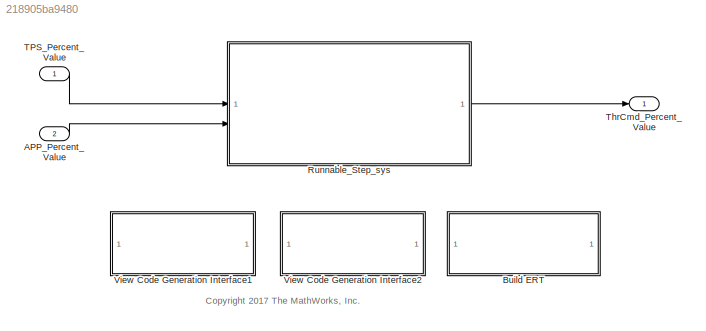
MODEL slx_218905ba9480
KIND model
CONFIG AbsTol = auto
CONFIG EnableMultiTasking = off
CONFIG FixedStep = 0.005
CONFIG MaxStep = auto
CONFIG MinStep = auto
CONFIG RelTol = 1e-3
CONFIG SampleTimeConstraint = Unconstrained
CONFIG SolverName = FixedStepDiscrete
CONFIG StartTime = 0.0
CONFIG StopTime = 10.0
BLOCK [Inport] APP_Percent_Value
  OutDataTypeStr = single
  Port = 2
  PortDimensions = 1
  SamplingMode = Sample based
  SignalType = real
BLOCK [SubSystem] Build ERT
  OpenFcn = try\n    if ~exist('rtwdemo_ert', 'dir')\n        disp('Creating working directory rtwdemo_ert')\n        mkdir('rtwdemo_ert')\n    end\n    cd('rtwdemo_ert');\n    rtwbuilddemomodel(bdroot);\n    cd('..');\ncatch myException\n    rethrow(myException);\nend
  PermitHierarchicalResolution = ExplicitOnly
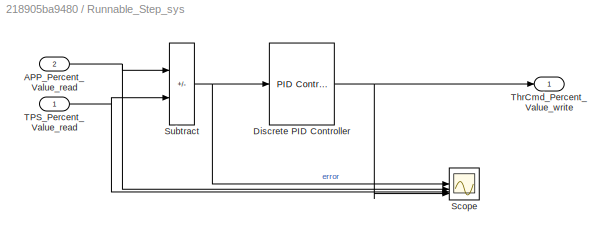
BLOCK [SubSystem] Runnable_Step_sys
  SystemSampleTime = 0.005
  TreatAsAtomicUnit = on
BLOCK [Inport] Runnable_Step_sys/APP_Percent_Value_read
  Port = 2
BLOCK [Reference] Runnable_Step_sys/Discrete PID Controller  REF=slpidlib/PID Controller
  SourceBlock = slpidlib/PID Controller
  SourceType = PID 1dof
BLOCK [Scope] Runnable_Step_sys/Scope
  Floating = off
  NumInputPorts = 4
  ScopeSpecificationString = Simulink.scopes.TimeScopeBlockCfg('CurrentConfiguration', extmgr.ConfigurationSet(extmgr.Configuration('Core','General UI',true),extmgr.Configuration('Core','Source UI',true),extmgr.Configuration('Sources','WiredSimulink',true),extmgr.Configuration('Visuals','Time Domain',true,'SerializedDisplays',{struct('MinYLimReal','-105.875','MaxYLimReal','122.875','YLabelReal','','MinYLimMag',' 0.00000','Max...<+1462ch>
BLOCK [Sum] Runnable_Step_sys/Subtract
  IconShape = rectangular
  Inputs = +-
BLOCK [Inport] Runnable_Step_sys/TPS_Percent_Value_read
BLOCK [Outport] Runnable_Step_sys/ThrCmd_Percent_Value_write
  VectorParamsAs1DForOutWhenUnconnected = off
BLOCK [Inport] TPS_Percent_Value
  OutDataTypeStr = single
  PortDimensions = 1
  SamplingMode = Sample based
  SignalType = real
BLOCK [Outport] ThrCmd_Percent_Value
  OutDataTypeStr = single
  PortDimensions = 1
  SamplingMode = Sample based
  SignalType = real
  VectorParamsAs1DForOutWhenUnconnected = off
BLOCK [SubSystem] View Code Generation Interface1
  OpenFcn = autosar_ui_launch(bdroot)
  PermitHierarchicalResolution = ExplicitOnly
BLOCK [SubSystem] View Code Generation Interface2
  OpenFcn = dlg = slCfgPrmDlg(bdroot,'Open');\ndlg = slCfgPrmDlg(bdroot,'TurnToPage',[message('RTW:configSet:configSetCodeGen').getString,'/',message('RTW:autosar:autosarCodeGenOptions').getString]); \nclear dlg;
  PermitHierarchicalResolution = ExplicitOnly
ANNOTATION (root): <copyright redacted>
LINE APP_Percent_Value:1 -> Runnable_Step_sys:2
NET Runnable_Step_sys/APP_Percent_Value_read:1 -> Runnable_Step_sys/Scope:2, Runnable_Step_sys/Subtract:1
NET Runnable_Step_sys/Discrete PID Controller:1 -> Runnable_Step_sys/Scope:4, Runnable_Step_sys/ThrCmd_Percent_Value_write:1
NET Runnable_Step_sys/Subtract:1 -> Runnable_Step_sys/Discrete PID Controller:1, Runnable_Step_sys/Scope:1
NET Runnable_Step_sys/TPS_Percent_Value_read:1 -> Runnable_Step_sys/Scope:3, Runnable_Step_sys/Subtract:2
LINE Runnable_Step_sys:1 -> ThrCmd_Percent_Value:1
LINE TPS_Percent_Value:1 -> Runnable_Step_sys:1
note: NET lines group one-source signal fan-out (src -> all destinations, sorted); 1:1 wires keep LINE
